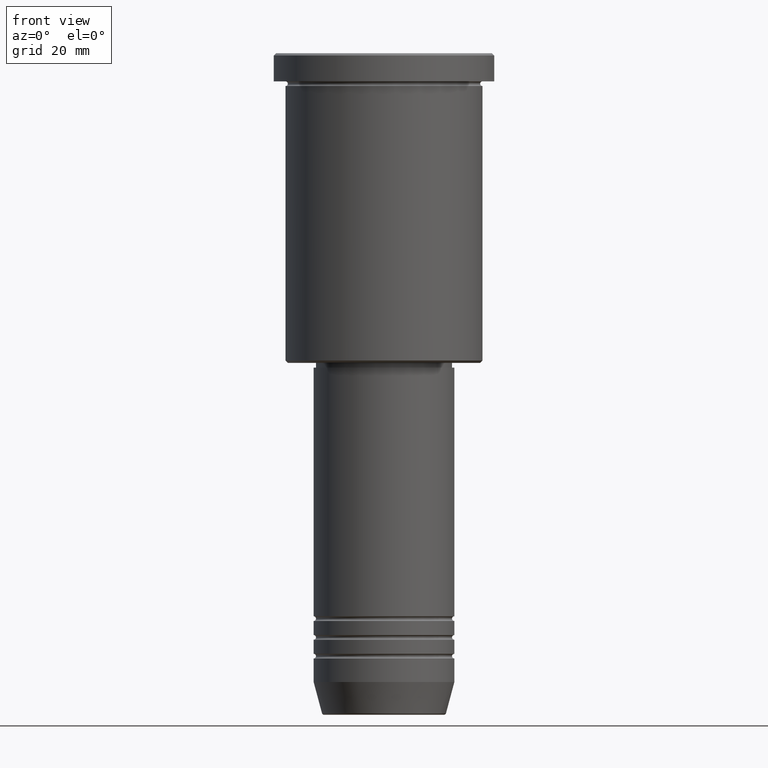
[diagram: clean part render]
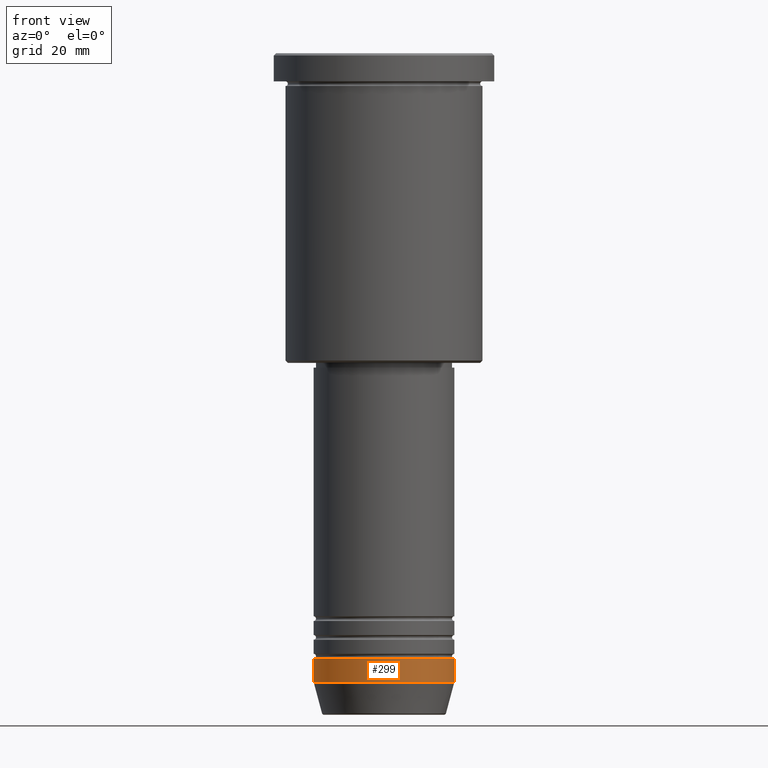
[diagram: same view with one face highlighted and labeled with its STEP entity id]
A machine part, front view. The second image highlights one B-rep face of the part: STEP entity #299.
In plain terms, the highlighted cylindrical surface (partial cylindrical patch) has radius 15 mm, axis along (-0, -0, 1).
Its self-contained STEP definition (entity closure, byte-faithful):
#36 = DIRECTION ( 'NONE',  ( -0.000000000000000000, -0.000000000000000000, 1.000000000000000000 ) ) ;
#41 = VECTOR ( 'NONE', #1170, 1000.000000000000000 ) ;
#94 = EDGE_LOOP ( 'NONE', ( #1083, #298, #363, #884 ) ) ;
#119 = DIRECTION ( 'NONE',  ( 1.000000000000000000, 0.000000000000000000, 0.000000000000000000 ) ) ;
#124 = DIRECTION ( 'NONE',  ( -0.000000000000000000, -0.000000000000000000, 1.000000000000000000 ) ) ;
#168 = LINE ( 'NONE', #544, #41 ) ;
#223 = CARTESIAN_POINT ( 'NONE',  ( 0.000000000000000000, 0.000000000000000000, -129.0000000000000000 ) ) ;
#248 = AXIS2_PLACEMENT_3D ( 'NONE', #223, #777, #594 ) ;
#257 = CARTESIAN_POINT ( 'NONE',  ( 0.000000000000000000, 0.000000000000000000, 0.000000000000000000 ) ) ;
#270 = CARTESIAN_POINT ( 'NONE',  ( 15.00000000000000000, 0.000000000000000000, -134.0000000000000000 ) ) ;
#280 = VERTEX_POINT ( 'NONE', #422 ) ;
#295 = VERTEX_POINT ( 'NONE', #994 ) ;
#298 = ORIENTED_EDGE ( 'NONE', *, *, #587, .T. ) ;
#299 = ADVANCED_FACE ( 'NONE', ( #1079 ), #906, .T. ) ;
#311 = CARTESIAN_POINT ( 'NONE',  ( 15.00000000000000000, 0.000000000000000000, -129.0000000000000000 ) ) ;
#340 = AXIS2_PLACEMENT_3D ( 'NONE', #257, #624, #119 ) ;
#363 = ORIENTED_EDGE ( 'NONE', *, *, #621, .T. ) ;
#422 = CARTESIAN_POINT ( 'NONE',  ( -15.00000000000000000, 1.836970198721029589E-15, -134.0000000000000000 ) ) ;
#454 = EDGE_CURVE ( 'NONE', #295, #456, #574, .T. ) ;
#456 = VERTEX_POINT ( 'NONE', #311 ) ;
#470 = DIRECTION ( 'NONE',  ( 1.000000000000000000, 0.000000000000000000, 0.000000000000000000 ) ) ;
#517 = CIRCLE ( 'NONE', #853, 15.00000000000000000 ) ;
#544 = CARTESIAN_POINT ( 'NONE',  ( 15.00000000000000000, 0.000000000000000000, 0.000000000000000000 ) ) ;
#574 = CIRCLE ( 'NONE', #248, 15.00000000000000000 ) ;
#587 = EDGE_CURVE ( 'NONE', #280, #1145, #517, .T. ) ;
#594 = DIRECTION ( 'NONE',  ( 1.000000000000000000, 0.000000000000000000, 0.000000000000000000 ) ) ;
#595 = LINE ( 'NONE', #784, #633 ) ;
#621 = EDGE_CURVE ( 'NONE', #1145, #456, #168, .T. ) ;
#624 = DIRECTION ( 'NONE',  ( -0.000000000000000000, -0.000000000000000000, 1.000000000000000000 ) ) ;
#633 = VECTOR ( 'NONE', #124, 1000.000000000000000 ) ;
#777 = DIRECTION ( 'NONE',  ( -0.000000000000000000, -0.000000000000000000, 1.000000000000000000 ) ) ;
#784 = CARTESIAN_POINT ( 'NONE',  ( -15.00000000000000000, 1.836970198721029589E-15, 0.000000000000000000 ) ) ;
#817 = CARTESIAN_POINT ( 'NONE',  ( 0.000000000000000000, 0.000000000000000000, -134.0000000000000000 ) ) ;
#853 = AXIS2_PLACEMENT_3D ( 'NONE', #817, #36, #470 ) ;
#884 = ORIENTED_EDGE ( 'NONE', *, *, #454, .F. ) ;
#906 = CYLINDRICAL_SURFACE ( 'NONE', #340, 15.00000000000000000 ) ;
#994 = CARTESIAN_POINT ( 'NONE',  ( -15.00000000000000000, 1.836970198721029589E-15, -129.0000000000000000 ) ) ;
#1001 = EDGE_CURVE ( 'NONE', #280, #295, #595, .T. ) ;
#1079 = FACE_OUTER_BOUND ( 'NONE', #94, .T. ) ;
#1083 = ORIENTED_EDGE ( 'NONE', *, *, #1001, .F. ) ;
#1145 = VERTEX_POINT ( 'NONE', #270 ) ;
#1170 = DIRECTION ( 'NONE',  ( -0.000000000000000000, -0.000000000000000000, 1.000000000000000000 ) ) ;